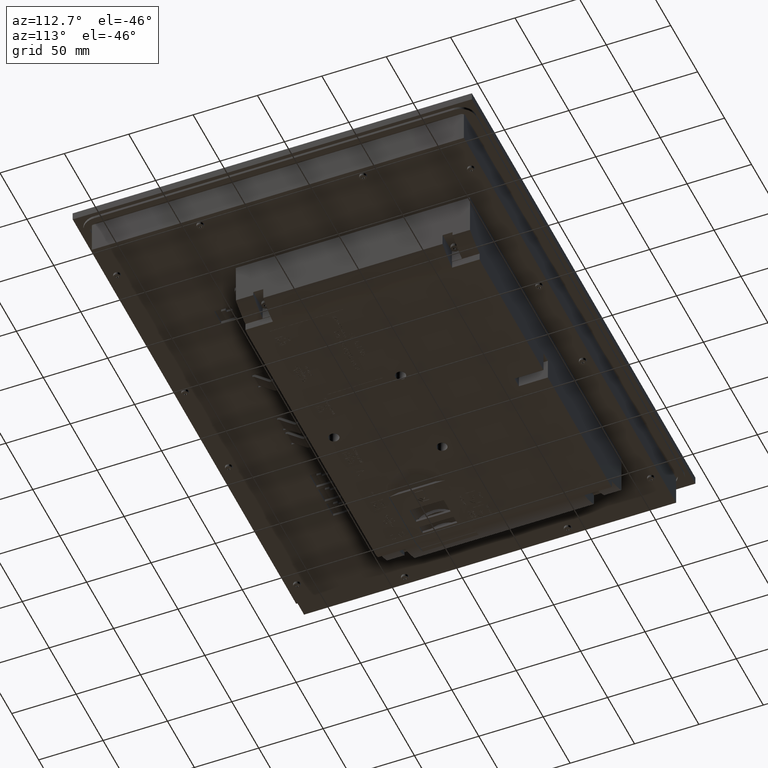
[diagram: clean part render]
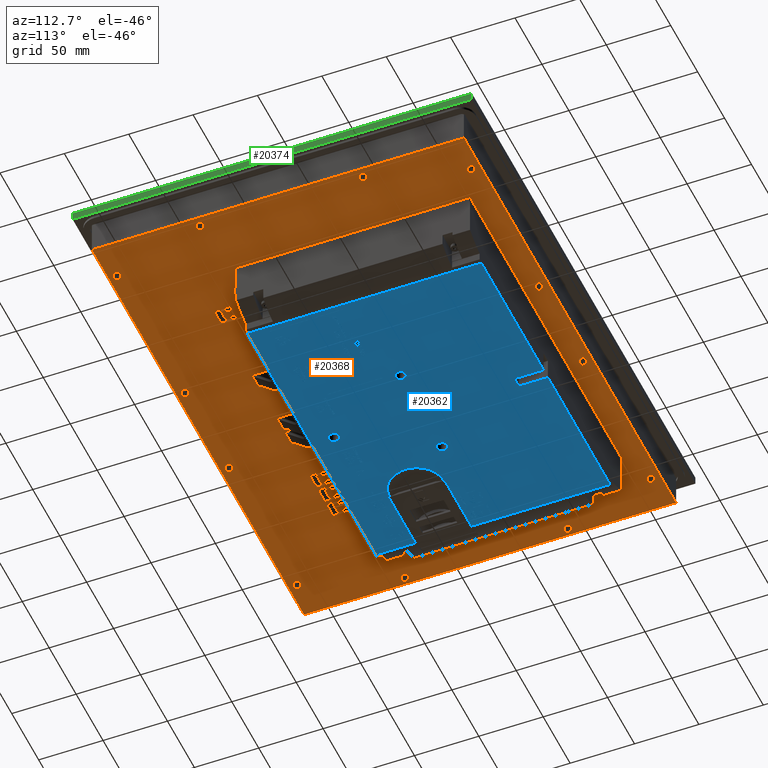
[diagram: same view with three faces highlighted in distinct colors, each labeled with its STEP entity id]
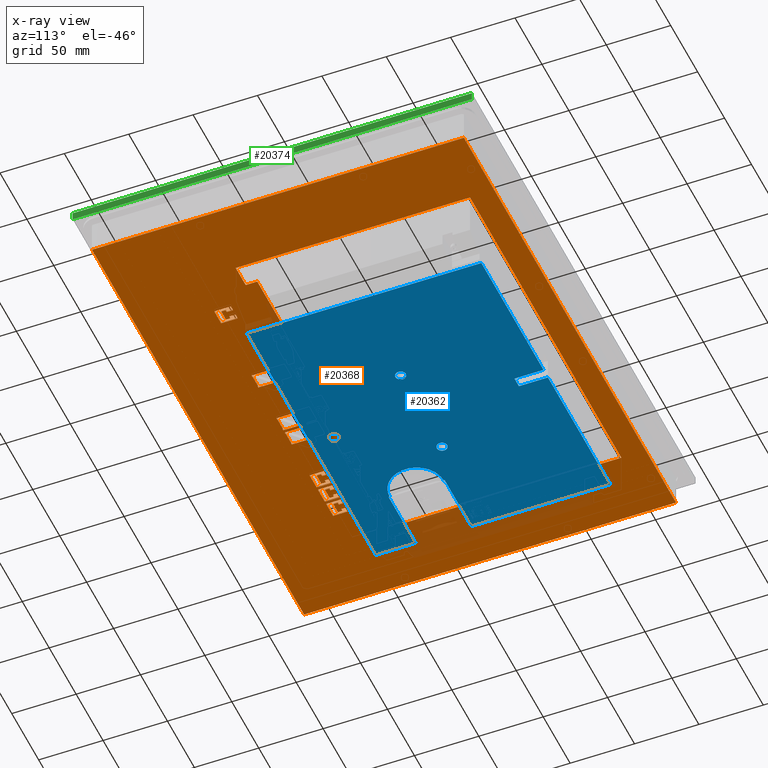
[diagram: x-ray of the same camera — body ghosted, the three highlighted faces saturated]
A machine part, auxiliary view with three faces highlighted in distinct colors.
The next image is the same camera in x-ray (body ghosted, the three faces saturated) — at least one of them is partly hidden behind the body in this view.
Their STEP definitions:

[orange] entity #20368 — the highlighted planar face has unit normal (0, 0, -1).
#4360=LINE('',#72456,#9855);
#4426=LINE('',#72645,#9921);
#4438=LINE('',#72672,#9933);
#4442=LINE('',#72680,#9937);
#4452=LINE('',#72705,#9947);
#4456=LINE('',#72713,#9951);
#4459=LINE('',#72721,#9954);
#4460=LINE('',#72724,#9955);
#4461=LINE('',#72726,#9956);
#4462=LINE('',#72728,#9957);
#4463=LINE('',#72730,#9958);
#4464=LINE('',#72732,#9959);
#4465=LINE('',#72734,#9960);
#4466=LINE('',#72736,#9961);
#4467=LINE('',#72738,#9962);
#4468=LINE('',#72740,#9963);
#4469=LINE('',#72742,#9964);
#4470=LINE('',#72744,#9965);
#4471=LINE('',#72745,#9966);
#4472=LINE('',#72748,#9967);
#4473=LINE('',#72750,#9968);
#4474=LINE('',#72752,#9969);
#4475=LINE('',#72754,#9970);
#4476=LINE('',#72756,#9971);
#4477=LINE('',#72758,#9972);
#4478=LINE('',#72760,#9973);
#4479=LINE('',#72761,#9974);
#4480=LINE('',#72764,#9975);
#4481=LINE('',#72766,#9976);
#4482=LINE('',#72768,#9977);
#4483=LINE('',#72770,#9978);
#4484=LINE('',#72772,#9979);
#4485=LINE('',#72774,#9980);
#4486=LINE('',#72776,#9981);
#4487=LINE('',#72778,#9982);
#4488=LINE('',#72780,#9983);
#4489=LINE('',#72782,#9984);
#4490=LINE('',#72784,#9985);
#4491=LINE('',#72785,#9986);
#4492=LINE('',#72788,#9987);
#4493=LINE('',#72790,#9988);
#4494=LINE('',#72792,#9989);
#4495=LINE('',#72794,#9990);
#4496=LINE('',#72796,#9991);
#4497=LINE('',#72798,#9992);
#4498=LINE('',#72800,#9993);
#4499=LINE('',#72802,#9994);
#4500=LINE('',#72804,#9995);
#4501=LINE('',#72806,#9996);
#4502=LINE('',#72808,#9997);
#4503=LINE('',#72809,#9998);
#4504=LINE('',#72812,#9999);
#4505=LINE('',#72814,#10000);
#4506=LINE('',#72816,#10001);
#4507=LINE('',#72817,#10002);
#4508=LINE('',#72820,#10003);
#4509=LINE('',#72822,#10004);
#4510=LINE('',#72824,#10005);
#4511=LINE('',#72826,#10006);
#4512=LINE('',#72828,#10007);
#4513=LINE('',#72830,#10008);
#4514=LINE('',#72832,#10009);
#4515=LINE('',#72834,#10010);
#4516=LINE('',#72836,#10011);
#4517=LINE('',#72838,#10012);
#4518=LINE('',#72840,#10013);
#4519=LINE('',#72841,#10014);
#4520=LINE('',#72844,#10015);
#4521=LINE('',#72846,#10016);
#4522=LINE('',#72848,#10017);
#4523=LINE('',#72850,#10018);
#4524=LINE('',#72852,#10019);
#4525=LINE('',#72854,#10020);
#4526=LINE('',#72856,#10021);
#4527=LINE('',#72857,#10022);
#4528=LINE('',#72860,#10023);
#4529=LINE('',#72862,#10024);
#4530=LINE('',#72864,#10025);
#4531=LINE('',#72866,#10026);
#4532=LINE('',#72868,#10027);
#4533=LINE('',#72870,#10028);
#4534=LINE('',#72872,#10029);
#4535=LINE('',#72873,#10030);
#4536=LINE('',#72874,#10031);
#9855=VECTOR('',#59454,1.);
#9921=VECTOR('',#59588,1.);
#9933=VECTOR('',#59606,1.);
#9937=VECTOR('',#59612,1.);
#9947=VECTOR('',#59632,1.);
#9951=VECTOR('',#59636,1.);
#9954=VECTOR('',#59645,1.);
#9955=VECTOR('',#59646,1.);
#9956=VECTOR('',#59647,1.);
#9957=VECTOR('',#59648,1.);
#9958=VECTOR('',#59649,1.);
#9959=VECTOR('',#59650,1.);
#9960=VECTOR('',#59651,1.);
#9961=VECTOR('',#59652,1.);
#9962=VECTOR('',#59653,1.);
#9963=VECTOR('',#59654,1.);
#9964=VECTOR('',#59655,1.);
#9965=VECTOR('',#59656,1.);
#9966=VECTOR('',#59657,1.);
#9967=VECTOR('',#59658,1.);
#9968=VECTOR('',#59659,1.);
#9969=VECTOR('',#59660,1.);
#9970=VECTOR('',#59661,1.);
#9971=VECTOR('',#59662,1.);
#9972=VECTOR('',#59663,1.);
#9973=VECTOR('',#59664,1.);
#9974=VECTOR('',#59665,1.);
#9975=VECTOR('',#59666,1.);
#9976=VECTOR('',#59667,1.);
#9977=VECTOR('',#59668,1.);
#9978=VECTOR('',#59669,1.);
#9979=VECTOR('',#59670,1.);
#9980=VECTOR('',#59671,1.);
#9981=VECTOR('',#59672,1.);
#9982=VECTOR('',#59673,1.);
#9983=VECTOR('',#59674,1.);
#9984=VECTOR('',#59675,1.);
#9985=VECTOR('',#59676,1.);
#9986=VECTOR('',#59677,1.);
#9987=VECTOR('',#59678,1.);
#9988=VECTOR('',#59679,1.);
#9989=VECTOR('',#59680,1.);
#9990=VECTOR('',#59681,1.);
#9991=VECTOR('',#59682,1.);
#9992=VECTOR('',#59683,1.);
#9993=VECTOR('',#59684,1.);
#9994=VECTOR('',#59685,1.);
#9995=VECTOR('',#59686,1.);
#9996=VECTOR('',#59687,1.);
#9997=VECTOR('',#59688,1.);
#9998=VECTOR('',#59689,1.);
#9999=VECTOR('',#59690,1.);
#10000=VECTOR('',#59691,1.);
#10001=VECTOR('',#59692,1.);
#10002=VECTOR('',#59693,1.);
#10003=VECTOR('',#59694,1.);
#10004=VECTOR('',#59695,1.);
#10005=VECTOR('',#59696,1.);
#10006=VECTOR('',#59697,1.);
#10007=VECTOR('',#59698,1.);
#10008=VECTOR('',#59699,1.);
#10009=VECTOR('',#59700,1.);
#10010=VECTOR('',#59701,1.);
#10011=VECTOR('',#59702,1.);
#10012=VECTOR('',#59703,1.);
#10013=VECTOR('',#59704,1.);
#10014=VECTOR('',#59705,1.);
#10015=VECTOR('',#59706,1.);
#10016=VECTOR('',#59707,1.);
#10017=VECTOR('',#59708,1.);
#10018=VECTOR('',#59709,1.);
#10019=VECTOR('',#59710,1.);
#10020=VECTOR('',#59711,1.);
#10021=VECTOR('',#59712,1.);
#10022=VECTOR('',#59713,1.);
#10023=VECTOR('',#59714,1.);
#10024=VECTOR('',#59715,1.);
#10025=VECTOR('',#59716,1.);
#10026=VECTOR('',#59717,1.);
#10027=VECTOR('',#59718,1.);
#10028=VECTOR('',#59719,1.);
#10029=VECTOR('',#59720,1.);
#10030=VECTOR('',#59721,1.);
#10031=VECTOR('',#59722,1.);
#17856=PLANE('',#54728);
#20368=ADVANCED_FACE('',(#23425,#23426,#23427,#23428,#23429,#23430,#23431,
#23432,#23433),#17856,.T.);
#23425=FACE_BOUND('',#24449,.T.);
#23426=FACE_BOUND('',#24450,.T.);
#23427=FACE_BOUND('',#24451,.T.);
#23428=FACE_BOUND('',#24452,.T.);
#23429=FACE_BOUND('',#24453,.T.);
#23430=FACE_BOUND('',#24454,.T.);
#23431=FACE_BOUND('',#24455,.T.);
#23432=FACE_BOUND('',#24456,.T.);
#23433=FACE_BOUND('',#24457,.T.);
#24449=EDGE_LOOP('',(#29309,#29310,#29311,#29312,#29313,#29314,#29315,#29316,
#29317,#29318,#29319,#29320));
#24450=EDGE_LOOP('',(#29321,#29322,#29323,#29324,#29325,#29326,#29327,#29328));
#24451=EDGE_LOOP('',(#29329,#29330,#29331,#29332,#29333,#29334,#29335,#29336,
#29337,#29338,#29339,#29340));
#24452=EDGE_LOOP('',(#29341,#29342,#29343,#29344,#29345,#29346,#29347,#29348,
#29349,#29350,#29351,#29352));
#24453=EDGE_LOOP('',(#29353,#29354,#29355,#29356));
#24454=EDGE_LOOP('',(#29357,#29358,#29359,#29360,#29361,#29362,#29363,#29364,
#29365,#29366,#29367,#29368));
#24455=EDGE_LOOP('',(#29369,#29370,#29371,#29372,#29373,#29374,#29375,#29376));
#24456=EDGE_LOOP('',(#29377,#29378,#29379,#29380,#29381,#29382,#29383,#29384));
#24457=EDGE_LOOP('',(#29385,#29386,#29387,#29388,#29389,#29390,#29391,#29392));
#29309=ORIENTED_EDGE('',*,*,#47240,.T.);
#29310=ORIENTED_EDGE('',*,*,#47241,.T.);
#29311=ORIENTED_EDGE('',*,*,#47242,.T.);
#29312=ORIENTED_EDGE('',*,*,#47243,.T.);
#29313=ORIENTED_EDGE('',*,*,#47244,.T.);
#29314=ORIENTED_EDGE('',*,*,#47245,.T.);
#29315=ORIENTED_EDGE('',*,*,#47246,.T.);
#29316=ORIENTED_EDGE('',*,*,#47247,.T.);
#29317=ORIENTED_EDGE('',*,*,#47248,.T.);
#29318=ORIENTED_EDGE('',*,*,#47249,.T.);
#29319=ORIENTED_EDGE('',*,*,#47250,.T.);
#29320=ORIENTED_EDGE('',*,*,#47251,.T.);
#29321=ORIENTED_EDGE('',*,*,#47252,.T.);
#29322=ORIENTED_EDGE('',*,*,#47253,.F.);
#29323=ORIENTED_EDGE('',*,*,#47254,.T.);
#29324=ORIENTED_EDGE('',*,*,#47255,.T.);
#29325=ORIENTED_EDGE('',*,*,#47256,.T.);
#29326=ORIENTED_EDGE('',*,*,#47257,.T.);
#29327=ORIENTED_EDGE('',*,*,#47258,.T.);
#29328=ORIENTED_EDGE('',*,*,#47259,.T.);
#29329=ORIENTED_EDGE('',*,*,#47260,.T.);
#29330=ORIENTED_EDGE('',*,*,#47261,.T.);
#29331=ORIENTED_EDGE('',*,*,#47262,.T.);
#29332=ORIENTED_EDGE('',*,*,#47263,.T.);
#29333=ORIENTED_EDGE('',*,*,#47264,.T.);
#29334=ORIENTED_EDGE('',*,*,#47265,.T.);
#29335=ORIENTED_EDGE('',*,*,#47266,.T.);
#29336=ORIENTED_EDGE('',*,*,#47267,.T.);
#29337=ORIENTED_EDGE('',*,*,#47268,.T.);
#29338=ORIENTED_EDGE('',*,*,#47269,.T.);
#29339=ORIENTED_EDGE('',*,*,#47270,.T.);
#29340=ORIENTED_EDGE('',*,*,#47271,.T.);
#29341=ORIENTED_EDGE('',*,*,#47272,.T.);
#29342=ORIENTED_EDGE('',*,*,#47273,.T.);
#29343=ORIENTED_EDGE('',*,*,#47274,.T.);
#29344=ORIENTED_EDGE('',*,*,#47275,.T.);
#29345=ORIENTED_EDGE('',*,*,#47276,.T.);
#29346=ORIENTED_EDGE('',*,*,#47277,.T.);
#29347=ORIENTED_EDGE('',*,*,#47278,.T.);
#29348=ORIENTED_EDGE('',*,*,#47279,.T.);
#29349=ORIENTED_EDGE('',*,*,#47280,.T.);
#29350=ORIENTED_EDGE('',*,*,#47281,.T.);
#29351=ORIENTED_EDGE('',*,*,#47282,.T.);
#29352=ORIENTED_EDGE('',*,*,#47283,.T.);
#29353=ORIENTED_EDGE('',*,*,#47284,.T.);
#29354=ORIENTED_EDGE('',*,*,#47285,.T.);
#29355=ORIENTED_EDGE('',*,*,#47286,.T.);
#29356=ORIENTED_EDGE('',*,*,#47287,.T.);
#29357=ORIENTED_EDGE('',*,*,#47288,.T.);
#29358=ORIENTED_EDGE('',*,*,#47289,.T.);
#29359=ORIENTED_EDGE('',*,*,#47290,.T.);
#29360=ORIENTED_EDGE('',*,*,#47291,.T.);
#29361=ORIENTED_EDGE('',*,*,#47292,.T.);
#29362=ORIENTED_EDGE('',*,*,#47293,.T.);
#29363=ORIENTED_EDGE('',*,*,#47294,.T.);
#29364=ORIENTED_EDGE('',*,*,#47295,.T.);
#29365=ORIENTED_EDGE('',*,*,#47296,.T.);
#29366=ORIENTED_EDGE('',*,*,#47297,.T.);
#29367=ORIENTED_EDGE('',*,*,#47298,.T.);
#29368=ORIENTED_EDGE('',*,*,#47299,.T.);
#29369=ORIENTED_EDGE('',*,*,#47300,.T.);
#29370=ORIENTED_EDGE('',*,*,#47301,.F.);
#29371=ORIENTED_EDGE('',*,*,#47302,.T.);
#29372=ORIENTED_EDGE('',*,*,#47303,.T.);
#29373=ORIENTED_EDGE('',*,*,#47304,.T.);
#29374=ORIENTED_EDGE('',*,*,#47305,.T.);
#29375=ORIENTED_EDGE('',*,*,#47306,.T.);
#29376=ORIENTED_EDGE('',*,*,#47307,.T.);
#29377=ORIENTED_EDGE('',*,*,#47308,.T.);
#29378=ORIENTED_EDGE('',*,*,#47309,.F.);
#29379=ORIENTED_EDGE('',*,*,#47310,.T.);
#29380=ORIENTED_EDGE('',*,*,#47311,.T.);
#29381=ORIENTED_EDGE('',*,*,#47312,.T.);
#29382=ORIENTED_EDGE('',*,*,#47313,.T.);
#29383=ORIENTED_EDGE('',*,*,#47314,.T.);
#29384=ORIENTED_EDGE('',*,*,#47315,.T.);
#29385=ORIENTED_EDGE('',*,*,#47231,.F.);
#29386=ORIENTED_EDGE('',*,*,#47218,.F.);
#29387=ORIENTED_EDGE('',*,*,#47200,.F.);
#29388=ORIENTED_EDGE('',*,*,#47214,.F.);
#29389=ORIENTED_EDGE('',*,*,#47235,.F.);
#29390=ORIENTED_EDGE('',*,*,#47316,.F.);
#29391=ORIENTED_EDGE('',*,*,#47105,.F.);
#29392=ORIENTED_EDGE('',*,*,#47317,.T.);
#42068=VERTEX_POINT('',#72455);
#42069=VERTEX_POINT('',#72457);
#42157=VERTEX_POINT('',#72644);
#42158=VERTEX_POINT('',#72646);
#42169=VERTEX_POINT('',#72671);
#42173=VERTEX_POINT('',#72681);
#42183=VERTEX_POINT('',#72706);
#42186=VERTEX_POINT('',#72712);
#42189=VERTEX_POINT('',#72722);
#42190=VERTEX_POINT('',#72723);
#42191=VERTEX_POINT('',#72725);
#42192=VERTEX_POINT('',#72727);
#42193=VERTEX_POINT('',#72729);
#42194=VERTEX_POINT('',#72731);
#42195=VERTEX_POINT('',#72733);
#42196=VERTEX_POINT('',#72735);
#42197=VERTEX_POINT('',#72737);
#42198=VERTEX_POINT('',#72739);
#42199=VERTEX_POINT('',#72741);
#42200=VERTEX_POINT('',#72743);
#42201=VERTEX_POINT('',#72746);
#42202=VERTEX_POINT('',#72747);
#42203=VERTEX_POINT('',#72749);
#42204=VERTEX_POINT('',#72751);
#42205=VERTEX_POINT('',#72753);
#42206=VERTEX_POINT('',#72755);
#42207=VERTEX_POINT('',#72757);
#42208=VERTEX_POINT('',#72759);
#42209=VERTEX_POINT('',#72762);
#42210=VERTEX_POINT('',#72763);
#42211=VERTEX_POINT('',#72765);
#42212=VERTEX_POINT('',#72767);
#42213=VERTEX_POINT('',#72769);
#42214=VERTEX_POINT('',#72771);
#42215=VERTEX_POINT('',#72773);
#42216=VERTEX_POINT('',#72775);
#42217=VERTEX_POINT('',#72777);
#42218=VERTEX_POINT('',#72779);
#42219=VERTEX_POINT('',#72781);
#42220=VERTEX_POINT('',#72783);
#42221=VERTEX_POINT('',#72786);
#42222=VERTEX_POINT('',#72787);
#42223=VERTEX_POINT('',#72789);
#42224=VERTEX_POINT('',#72791);
#42225=VERTEX_POINT('',#72793);
#42226=VERTEX_POINT('',#72795);
#42227=VERTEX_POINT('',#72797);
#42228=VERTEX_POINT('',#72799);
#42229=VERTEX_POINT('',#72801);
#42230=VERTEX_POINT('',#72803);
#42231=VERTEX_POINT('',#72805);
#42232=VERTEX_POINT('',#72807);
#42233=VERTEX_POINT('',#72810);
#42234=VERTEX_POINT('',#72811);
#42235=VERTEX_POINT('',#72813);
#42236=VERTEX_POINT('',#72815);
#42237=VERTEX_POINT('',#72818);
#42238=VERTEX_POINT('',#72819);
#42239=VERTEX_POINT('',#72821);
#42240=VERTEX_POINT('',#72823);
#42241=VERTEX_POINT('',#72825);
#42242=VERTEX_POINT('',#72827);
#42243=VERTEX_POINT('',#72829);
#42244=VERTEX_POINT('',#72831);
#42245=VERTEX_POINT('',#72833);
#42246=VERTEX_POINT('',#72835);
#42247=VERTEX_POINT('',#72837);
#42248=VERTEX_POINT('',#72839);
#42249=VERTEX_POINT('',#72842);
#42250=VERTEX_POINT('',#72843);
#42251=VERTEX_POINT('',#72845);
#42252=VERTEX_POINT('',#72847);
#42253=VERTEX_POINT('',#72849);
#42254=VERTEX_POINT('',#72851);
#42255=VERTEX_POINT('',#72853);
#42256=VERTEX_POINT('',#72855);
#42257=VERTEX_POINT('',#72858);
#42258=VERTEX_POINT('',#72859);
#42259=VERTEX_POINT('',#72861);
#42260=VERTEX_POINT('',#72863);
#42261=VERTEX_POINT('',#72865);
#42262=VERTEX_POINT('',#72867);
#42263=VERTEX_POINT('',#72869);
#42264=VERTEX_POINT('',#72871);
#47105=EDGE_CURVE('',#42068,#42069,#4360,.T.);
#47200=EDGE_CURVE('',#42157,#42158,#4426,.T.);
#47214=EDGE_CURVE('',#42169,#42157,#4438,.T.);
#47218=EDGE_CURVE('',#42158,#42173,#4442,.T.);
#47231=EDGE_CURVE('',#42173,#42183,#4452,.T.);
#47235=EDGE_CURVE('',#42186,#42169,#4456,.T.);
#47240=EDGE_CURVE('',#42189,#42190,#4459,.T.);
#47241=EDGE_CURVE('',#42190,#42191,#4460,.T.);
#47242=EDGE_CURVE('',#42191,#42192,#4461,.T.);
#47243=EDGE_CURVE('',#42192,#42193,#4462,.T.);
#47244=EDGE_CURVE('',#42193,#42194,#4463,.T.);
#47245=EDGE_CURVE('',#42194,#42195,#4464,.T.);
#47246=EDGE_CURVE('',#42195,#42196,#4465,.T.);
#47247=EDGE_CURVE('',#42196,#42197,#4466,.T.);
#47248=EDGE_CURVE('',#42197,#42198,#4467,.T.);
#47249=EDGE_CURVE('',#42198,#42199,#4468,.T.);
#47250=EDGE_CURVE('',#42199,#42200,#4469,.T.);
#47251=EDGE_CURVE('',#42200,#42189,#4470,.T.);
#47252=EDGE_CURVE('',#42201,#42202,#4471,.T.);
#47253=EDGE_CURVE('',#42203,#42202,#4472,.T.);
#47254=EDGE_CURVE('',#42203,#42204,#4473,.T.);
#47255=EDGE_CURVE('',#42204,#42205,#4474,.T.);
#47256=EDGE_CURVE('',#42205,#42206,#4475,.T.);
#47257=EDGE_CURVE('',#42206,#42207,#4476,.T.);
#47258=EDGE_CURVE('',#42207,#42208,#4477,.T.);
#47259=EDGE_CURVE('',#42208,#42201,#4478,.T.);
#47260=EDGE_CURVE('',#42209,#42210,#4479,.T.);
#47261=EDGE_CURVE('',#42210,#42211,#4480,.T.);
#47262=EDGE_CURVE('',#42211,#42212,#4481,.T.);
#47263=EDGE_CURVE('',#42212,#42213,#4482,.T.);
#47264=EDGE_CURVE('',#42213,#42214,#4483,.T.);
#47265=EDGE_CURVE('',#42214,#42215,#4484,.T.);
#47266=EDGE_CURVE('',#42215,#42216,#4485,.T.);
#47267=EDGE_CURVE('',#42216,#42217,#4486,.T.);
#47268=EDGE_CURVE('',#42217,#42218,#4487,.T.);
#47269=EDGE_CURVE('',#42218,#42219,#4488,.T.);
#47270=EDGE_CURVE('',#42219,#42220,#4489,.T.);
#47271=EDGE_CURVE('',#42220,#42209,#4490,.T.);
#47272=EDGE_CURVE('',#42221,#42222,#4491,.T.);
#47273=EDGE_CURVE('',#42222,#42223,#4492,.T.);
#47274=EDGE_CURVE('',#42223,#42224,#4493,.T.);
#47275=EDGE_CURVE('',#42224,#42225,#4494,.T.);
#47276=EDGE_CURVE('',#42225,#42226,#4495,.T.);
#47277=EDGE_CURVE('',#42226,#42227,#4496,.T.);
#47278=EDGE_CURVE('',#42227,#42228,#4497,.T.);
#47279=EDGE_CURVE('',#42228,#42229,#4498,.T.);
#47280=EDGE_CURVE('',#42229,#42230,#4499,.T.);
#47281=EDGE_CURVE('',#42230,#42231,#4500,.T.);
#47282=EDGE_CURVE('',#42231,#42232,#4501,.T.);
#47283=EDGE_CURVE('',#42232,#42221,#4502,.T.);
#47284=EDGE_CURVE('',#42233,#42234,#4503,.T.);
#47285=EDGE_CURVE('',#42234,#42235,#4504,.T.);
#47286=EDGE_CURVE('',#42235,#42236,#4505,.T.);
#47287=EDGE_CURVE('',#42236,#42233,#4506,.T.);
#47288=EDGE_CURVE('',#42237,#42238,#4507,.T.);
#47289=EDGE_CURVE('',#42238,#42239,#4508,.T.);
#47290=EDGE_CURVE('',#42239,#42240,#4509,.T.);
#47291=EDGE_CURVE('',#42240,#42241,#4510,.T.);
#47292=EDGE_CURVE('',#42241,#42242,#4511,.T.);
#47293=EDGE_CURVE('',#42242,#42243,#4512,.T.);
#47294=EDGE_CURVE('',#42243,#42244,#4513,.T.);
#47295=EDGE_CURVE('',#42244,#42245,#4514,.T.);
#47296=EDGE_CURVE('',#42245,#42246,#4515,.T.);
#47297=EDGE_CURVE('',#42246,#42247,#4516,.T.);
#47298=EDGE_CURVE('',#42247,#42248,#4517,.T.);
#47299=EDGE_CURVE('',#42248,#42237,#4518,.T.);
#47300=EDGE_CURVE('',#42249,#42250,#4519,.T.);
#47301=EDGE_CURVE('',#42251,#42250,#4520,.T.);
#47302=EDGE_CURVE('',#42251,#42252,#4521,.T.);
#47303=EDGE_CURVE('',#42252,#42253,#4522,.T.);
#47304=EDGE_CURVE('',#42253,#42254,#4523,.T.);
#47305=EDGE_CURVE('',#42254,#42255,#4524,.T.);
#47306=EDGE_CURVE('',#42255,#42256,#4525,.T.);
#47307=EDGE_CURVE('',#42256,#42249,#4526,.T.);
#47308=EDGE_CURVE('',#42257,#42258,#4527,.T.);
#47309=EDGE_CURVE('',#42259,#42258,#4528,.T.);
#47310=EDGE_CURVE('',#42259,#42260,#4529,.T.);
#47311=EDGE_CURVE('',#42260,#42261,#4530,.T.);
#47312=EDGE_CURVE('',#42261,#42262,#4531,.T.);
#47313=EDGE_CURVE('',#42262,#42263,#4532,.T.);
#47314=EDGE_CURVE('',#42263,#42264,#4533,.T.);
#47315=EDGE_CURVE('',#42264,#42257,#4534,.T.);
#47316=EDGE_CURVE('',#42069,#42186,#4535,.T.);
#47317=EDGE_CURVE('',#42068,#42183,#4536,.T.);
#54728=AXIS2_PLACEMENT_3D('',#72875,#59723,#59724);
#59454=DIRECTION('',(1.,0.,0.));
#59588=DIRECTION('',(-1.,0.,0.));
#59606=DIRECTION('',(0.,-1.,0.));
#59612=DIRECTION('',(0.,1.,0.));
#59632=DIRECTION('',(1.,0.,0.));
#59636=DIRECTION('',(1.,0.,0.));
#59645=DIRECTION('',(-1.,0.,0.));
#59646=DIRECTION('',(0.,-1.,0.));
#59647=DIRECTION('',(1.,0.,0.));
#59648=DIRECTION('',(0.,1.,0.));
#59649=DIRECTION('',(-1.,0.,0.));
#59650=DIRECTION('',(0.,1.,0.));
#59651=DIRECTION('',(1.,0.,0.));
#59652=DIRECTION('',(0.,-1.,0.));
#59653=DIRECTION('',(-1.,0.,0.));
#59654=DIRECTION('',(0.,-1.,0.));
#59655=DIRECTION('',(1.,0.,0.));
#59656=DIRECTION('',(0.,1.,0.));
#59657=DIRECTION('',(-1.,0.,0.));
#59658=DIRECTION('',(0.,1.,0.));
#59659=DIRECTION('',(-1.,0.,0.));
#59660=DIRECTION('',(0.,1.,0.));
#59661=DIRECTION('',(-1.,0.,0.));
#59662=DIRECTION('',(0.,-1.,0.));
#59663=DIRECTION('',(1.,0.,0.));
#59664=DIRECTION('',(0.,1.,0.));
#59665=DIRECTION('',(-1.,0.,0.));
#59666=DIRECTION('',(0.,-1.,0.));
#59667=DIRECTION('',(1.,0.,0.));
#59668=DIRECTION('',(0.,1.,0.));
#59669=DIRECTION('',(-1.,0.,0.));
#59670=DIRECTION('',(0.,1.,0.));
#59671=DIRECTION('',(1.,0.,0.));
#59672=DIRECTION('',(0.,-1.,0.));
#59673=DIRECTION('',(-1.,0.,0.));
#59674=DIRECTION('',(0.,-1.,0.));
#59675=DIRECTION('',(1.,0.,0.));
#59676=DIRECTION('',(0.,1.,0.));
#59677=DIRECTION('',(-1.,0.,0.));
#59678=DIRECTION('',(0.,-1.,0.));
#59679=DIRECTION('',(1.,0.,0.));
#59680=DIRECTION('',(0.,1.,0.));
#59681=DIRECTION('',(-1.,0.,0.));
#59682=DIRECTION('',(0.,1.,0.));
#59683=DIRECTION('',(1.,0.,0.));
#59684=DIRECTION('',(0.,-1.,0.));
#59685=DIRECTION('',(-1.,0.,0.));
#59686=DIRECTION('',(0.,-1.,0.));
#59687=DIRECTION('',(1.,0.,0.));
#59688=DIRECTION('',(0.,1.,0.));
#59689=DIRECTION('',(0.,1.,0.));
#59690=DIRECTION('',(1.,0.,0.));
#59691=DIRECTION('',(0.,-1.,0.));
#59692=DIRECTION('',(-1.,0.,0.));
#59693=DIRECTION('',(-1.,0.,0.));
#59694=DIRECTION('',(0.,-1.,0.));
#59695=DIRECTION('',(1.,0.,0.));
#59696=DIRECTION('',(0.,1.,0.));
#59697=DIRECTION('',(-1.,0.,0.));
#59698=DIRECTION('',(0.,1.,0.));
#59699=DIRECTION('',(1.,0.,0.));
#59700=DIRECTION('',(0.,-1.,0.));
#59701=DIRECTION('',(-1.,0.,0.));
#59702=DIRECTION('',(0.,-1.,0.));
#59703=DIRECTION('',(1.,0.,0.));
#59704=DIRECTION('',(0.,1.,0.));
#59705=DIRECTION('',(-1.,0.,0.));
#59706=DIRECTION('',(0.,1.,0.));
#59707=DIRECTION('',(-1.,0.,0.));
#59708=DIRECTION('',(0.,1.,0.));
#59709=DIRECTION('',(-1.,0.,0.));
#59710=DIRECTION('',(0.,-1.,0.));
#59711=DIRECTION('',(1.,0.,0.));
#59712=DIRECTION('',(0.,1.,0.));
#59713=DIRECTION('',(-1.,0.,0.));
#59714=DIRECTION('',(0.,1.,0.));
#59715=DIRECTION('',(-1.,0.,0.));
#59716=DIRECTION('',(0.,1.,0.));
#59717=DIRECTION('',(-1.,0.,0.));
#59718=DIRECTION('',(0.,-1.,0.));
#59719=DIRECTION('',(1.,0.,0.));
#59720=DIRECTION('',(0.,1.,0.));
#59721=DIRECTION('',(0.,1.,0.));
#59722=DIRECTION('',(0.,1.,0.));
#59723=DIRECTION('',(0.,0.,-1.));
#59724=DIRECTION('',(-1.,0.,0.));
#72455=CARTESIAN_POINT('',(-122.000000000027,47.40000192373,-28.));
#72456=CARTESIAN_POINT('',(-122.000000000027,47.40000192373,-28.));
#72457=CARTESIAN_POINT('',(122.000000000027,47.40000192373,-28.));
#72644=CARTESIAN_POINT('',(140.4873019237,-125.58730192373,-28.));
#72645=CARTESIAN_POINT('',(140.4873019237,-125.58730192373,-28.));
#72646=CARTESIAN_POINT('',(-140.4873019237,-125.58730192373,-28.));
#72671=CARTESIAN_POINT('',(140.4873019237,56.38730192373,-28.));
#72672=CARTESIAN_POINT('',(140.4873019237,56.38730192373,-28.));
#72680=CARTESIAN_POINT('',(-140.4873019237,-125.58730192373,-28.));
#72681=CARTESIAN_POINT('',(-140.4873019237,56.38730192373,-28.));
#72705=CARTESIAN_POINT('',(-140.4873019237,56.38730192373,-28.));
#72706=CARTESIAN_POINT('',(-122.000000000027,56.38730192373,-28.));
#72712=CARTESIAN_POINT('',(122.000000000027,56.38730192373,-28.));
#72713=CARTESIAN_POINT('',(-140.4873019237,56.38730192373,-28.));
#72721=CARTESIAN_POINT('',(-93.7,87.2674,-28.));
#72722=CARTESIAN_POINT('',(-93.7,87.2674,-28.));
#72723=CARTESIAN_POINT('',(-106.5,87.2674,-28.));
#72724=CARTESIAN_POINT('',(-106.5,87.2674,-28.));
#72725=CARTESIAN_POINT('',(-106.5,74.4674,-28.));
#72726=CARTESIAN_POINT('',(-106.5,74.4674,-28.));
#72727=CARTESIAN_POINT('',(-102.5,74.4674,-28.));
#72728=CARTESIAN_POINT('',(-102.5,74.4674,-28.));
#72729=CARTESIAN_POINT('',(-102.5,79.2674,-28.));
#72730=CARTESIAN_POINT('',(-102.5,79.2674,-28.));
#72731=CARTESIAN_POINT('',(-104.5,79.2674,-28.));
#72732=CARTESIAN_POINT('',(-104.5,79.2674,-28.));
#72733=CARTESIAN_POINT('',(-104.5,82.7674,-28.));
#72734=CARTESIAN_POINT('',(-104.5,82.7674,-28.));
#72735=CARTESIAN_POINT('',(-95.7,82.7674,-28.));
#72736=CARTESIAN_POINT('',(-95.7,82.7674,-28.));
#72737=CARTESIAN_POINT('',(-95.7,79.2674,-28.));
#72738=CARTESIAN_POINT('',(-95.7,79.2674,-28.));
#72739=CARTESIAN_POINT('',(-97.7,79.2674,-28.));
#72740=CARTESIAN_POINT('',(-97.7,79.2674,-28.));
#72741=CARTESIAN_POINT('',(-97.7,74.4674,-28.));
#72742=CARTESIAN_POINT('',(-97.7,74.4674,-28.));
#72743=CARTESIAN_POINT('',(-93.7,74.4674,-28.));
#72744=CARTESIAN_POINT('',(-93.7,74.4674,-28.));
#72745=CARTESIAN_POINT('',(21.795,87.2674,-28.));
#72746=CARTESIAN_POINT('',(21.795,87.2674,-28.));
#72747=CARTESIAN_POINT('',(20.295,87.2674,-28.));
#72748=CARTESIAN_POINT('',(20.295,86.99534046853,-28.));
#72749=CARTESIAN_POINT('',(20.295,86.99534046853,-28.));
#72750=CARTESIAN_POINT('',(20.295,86.99534046853,-28.));
#72751=CARTESIAN_POINT('',(10.495,86.99534046853,-28.));
#72752=CARTESIAN_POINT('',(10.495,86.99534046853,-28.));
#72753=CARTESIAN_POINT('',(10.495,87.2674,-28.));
#72754=CARTESIAN_POINT('',(21.795,87.2674,-28.));
#72755=CARTESIAN_POINT('',(8.995,87.2674,-28.));
#72756=CARTESIAN_POINT('',(8.995,87.2674,-28.));
#72757=CARTESIAN_POINT('',(8.995,61.7674,-28.));
#72758=CARTESIAN_POINT('',(8.995,61.7674,-28.));
#72759=CARTESIAN_POINT('',(21.795,61.7674,-28.));
#72760=CARTESIAN_POINT('',(21.795,61.7674,-28.));
#72761=CARTESIAN_POINT('',(83.4,87.2674,-28.));
#72762=CARTESIAN_POINT('',(83.4,87.2674,-28.));
#72763=CARTESIAN_POINT('',(70.5999999999999,87.2674,-28.));
#72764=CARTESIAN_POINT('',(70.6,87.2674,-28.));
#72765=CARTESIAN_POINT('',(70.6,74.4674,-28.));
#72766=CARTESIAN_POINT('',(70.6,74.4674,-28.));
#72767=CARTESIAN_POINT('',(74.6,74.4674,-28.));
#72768=CARTESIAN_POINT('',(74.6,74.4674,-28.));
#72769=CARTESIAN_POINT('',(74.6,79.2674,-28.));
#72770=CARTESIAN_POINT('',(74.6,79.2674,-28.));
#72771=CARTESIAN_POINT('',(72.6,79.2674,-28.));
#72772=CARTESIAN_POINT('',(72.6,79.2674,-28.));
#72773=CARTESIAN_POINT('',(72.6,82.7674,-28.));
#72774=CARTESIAN_POINT('',(72.6,82.7674,-28.));
#72775=CARTESIAN_POINT('',(81.4,82.7674,-28.));
#72776=CARTESIAN_POINT('',(81.4,82.7674,-28.));
#72777=CARTESIAN_POINT('',(81.4,79.2674,-28.));
#72778=CARTESIAN_POINT('',(81.4,79.2674,-28.));
#72779=CARTESIAN_POINT('',(79.4,79.2674,-28.));
#72780=CARTESIAN_POINT('',(79.4,79.2674,-28.));
#72781=CARTESIAN_POINT('',(79.4,74.4674,-28.));
#72782=CARTESIAN_POINT('',(79.4,74.4674,-28.));
#72783=CARTESIAN_POINT('',(83.4,74.4674,-28.));
#72784=CARTESIAN_POINT('',(83.4,74.4674,-28.));
#72785=CARTESIAN_POINT('',(114.2,87.2674,-28.));
#72786=CARTESIAN_POINT('',(114.2,87.2674,-28.));
#72787=CARTESIAN_POINT('',(101.4,87.2674,-28.));
#72788=CARTESIAN_POINT('',(101.4,87.2674,-28.));
#72789=CARTESIAN_POINT('',(101.4,74.4674,-28.));
#72790=CARTESIAN_POINT('',(101.4,74.4674,-28.));
#72791=CARTESIAN_POINT('',(105.4,74.4674,-28.));
#72792=CARTESIAN_POINT('',(105.4,74.4674,-28.));
#72793=CARTESIAN_POINT('',(105.4,79.2674,-28.));
#72794=CARTESIAN_POINT('',(105.4,79.2674,-28.));
#72795=CARTESIAN_POINT('',(103.4,79.2674,-28.));
#72796=CARTESIAN_POINT('',(103.4,79.2674,-28.));
#72797=CARTESIAN_POINT('',(103.4,82.7674,-28.));
#72798=CARTESIAN_POINT('',(103.4,82.7674,-28.));
#72799=CARTESIAN_POINT('',(112.2,82.7674,-28.));
#72800=CARTESIAN_POINT('',(112.2,82.7674,-28.));
#72801=CARTESIAN_POINT('',(112.2,79.2674,-28.));
#72802=CARTESIAN_POINT('',(112.2,79.2674,-28.));
#72803=CARTESIAN_POINT('',(110.2,79.2674,-28.));
#72804=CARTESIAN_POINT('',(110.2,79.2674,-28.));
#72805=CARTESIAN_POINT('',(110.2,74.4674,-28.));
#72806=CARTESIAN_POINT('',(110.2,74.4674,-28.));
#72807=CARTESIAN_POINT('',(114.2,74.4674,-28.));
#72808=CARTESIAN_POINT('',(114.2,74.4674,-28.));
#72809=CARTESIAN_POINT('',(-196.949999,-144.45,-28.));
#72810=CARTESIAN_POINT('',(-196.949999,-144.45,-28.));
#72811=CARTESIAN_POINT('',(-196.949999,144.45,-28.));
#72812=CARTESIAN_POINT('',(-196.949999,144.45,-28.));
#72813=CARTESIAN_POINT('',(196.95,144.45,-28.));
#72814=CARTESIAN_POINT('',(196.95,144.45,-28.));
#72815=CARTESIAN_POINT('',(196.95,-144.45,-28.));
#72816=CARTESIAN_POINT('',(196.95,-144.45,-28.));
#72817=CARTESIAN_POINT('',(98.8,87.2674,-28.));
#72818=CARTESIAN_POINT('',(98.8,87.2674,-28.));
#72819=CARTESIAN_POINT('',(86.,87.2674,-28.));
#72820=CARTESIAN_POINT('',(86.,87.2674,-28.));
#72821=CARTESIAN_POINT('',(86.,74.4674,-28.));
#72822=CARTESIAN_POINT('',(86.,74.4674,-28.));
#72823=CARTESIAN_POINT('',(90.,74.4674,-28.));
#72824=CARTESIAN_POINT('',(90.,74.4674,-28.));
#72825=CARTESIAN_POINT('',(90.,79.2674,-28.));
#72826=CARTESIAN_POINT('',(90.,79.2674,-28.));
#72827=CARTESIAN_POINT('',(88.,79.2674,-28.));
#72828=CARTESIAN_POINT('',(88.,79.2674,-28.));
#72829=CARTESIAN_POINT('',(88.,82.7674,-28.));
#72830=CARTESIAN_POINT('',(88.,82.7674,-28.));
#72831=CARTESIAN_POINT('',(96.8,82.7674,-28.));
#72832=CARTESIAN_POINT('',(96.8,82.7674,-28.));
#72833=CARTESIAN_POINT('',(96.8,79.2674,-28.));
#72834=CARTESIAN_POINT('',(96.8,79.2674,-28.));
#72835=CARTESIAN_POINT('',(94.8,79.2674,-28.));
#72836=CARTESIAN_POINT('',(94.8,79.2674,-28.));
#72837=CARTESIAN_POINT('',(94.8,74.4674,-28.));
#72838=CARTESIAN_POINT('',(94.8,74.4674,-28.));
#72839=CARTESIAN_POINT('',(98.8,74.4674,-28.));
#72840=CARTESIAN_POINT('',(98.8,74.4674,-28.));
#72841=CARTESIAN_POINT('',(37.2,87.2674,-28.));
#72842=CARTESIAN_POINT('',(37.2,87.2674,-28.));
#72843=CARTESIAN_POINT('',(35.7,87.2674,-28.));
#72844=CARTESIAN_POINT('',(35.7,86.99534046853,-28.));
#72845=CARTESIAN_POINT('',(35.7,86.99534046853,-28.));
#72846=CARTESIAN_POINT('',(35.7,86.99534046853,-28.));
#72847=CARTESIAN_POINT('',(25.9,86.99534046853,-28.));
#72848=CARTESIAN_POINT('',(25.9,86.99534046853,-28.));
#72849=CARTESIAN_POINT('',(25.9,87.2674,-28.));
#72850=CARTESIAN_POINT('',(37.2,87.2674,-28.));
#72851=CARTESIAN_POINT('',(24.4,87.2674,-28.));
#72852=CARTESIAN_POINT('',(24.4,87.2674,-28.));
#72853=CARTESIAN_POINT('',(24.4,61.7674,-28.));
#72854=CARTESIAN_POINT('',(24.4,61.7674,-28.));
#72855=CARTESIAN_POINT('',(37.2,61.7674,-28.));
#72856=CARTESIAN_POINT('',(37.2,61.7674,-28.));
#72857=CARTESIAN_POINT('',(-24.4,87.2674,-28.));
#72858=CARTESIAN_POINT('',(-24.4,87.2674,-28.));
#72859=CARTESIAN_POINT('',(-25.9,87.2674,-28.));
#72860=CARTESIAN_POINT('',(-25.9,86.99534046853,-28.));
#72861=CARTESIAN_POINT('',(-25.9,86.99534046853,-28.));
#72862=CARTESIAN_POINT('',(-25.9,86.99534046853,-28.));
#72863=CARTESIAN_POINT('',(-35.7,86.99534046853,-28.));
#72864=CARTESIAN_POINT('',(-35.7,86.99534046853,-28.));
#72865=CARTESIAN_POINT('',(-35.7,87.2674,-28.));
#72866=CARTESIAN_POINT('',(-24.4,87.2674,-28.));
#72867=CARTESIAN_POINT('',(-37.2,87.2674,-28.));
#72868=CARTESIAN_POINT('',(-37.2,87.2674,-28.));
#72869=CARTESIAN_POINT('',(-37.2,61.7674,-28.));
#72870=CARTESIAN_POINT('',(-37.2,61.7674,-28.));
#72871=CARTESIAN_POINT('',(-24.4,61.7674,-28.));
#72872=CARTESIAN_POINT('',(-24.4,61.7674,-28.));
#72873=CARTESIAN_POINT('',(122.000000000027,47.40000192373,-28.));
#72874=CARTESIAN_POINT('',(-122.000000000027,47.40000192373,-28.));
#72875=CARTESIAN_POINT('',(-196.949999,144.45,-28.));

[blue] entity #20362 — the highlighted planar face has unit normal (0, 0, -1).
#4394=LINE('',#72562,#9889);
#4398=LINE('',#72578,#9893);
#4410=LINE('',#72611,#9905);
#4411=LINE('',#72616,#9906);
#4412=LINE('',#72618,#9907);
#4413=LINE('',#72619,#9908);
#4414=LINE('',#72621,#9909);
#4415=LINE('',#72623,#9910);
#4416=LINE('',#72625,#9911);
#4417=LINE('',#72627,#9912);
#4418=LINE('',#72629,#9913);
#4419=LINE('',#72631,#9914);
#4420=LINE('',#72632,#9915);
#9889=VECTOR('',#59528,1.);
#9893=VECTOR('',#59540,1.);
#9905=VECTOR('',#59566,1.);
#9906=VECTOR('',#59569,1.);
#9907=VECTOR('',#59570,1.);
#9908=VECTOR('',#59571,1.);
#9909=VECTOR('',#59572,1.);
#9910=VECTOR('',#59573,1.);
#9911=VECTOR('',#59574,1.);
#9912=VECTOR('',#59575,1.);
#9913=VECTOR('',#59576,1.);
#9914=VECTOR('',#59577,1.);
#9915=VECTOR('',#59578,1.);
#17851=PLANE('',#54714);
#20362=ADVANCED_FACE('',(#23421,#23422,#23423,#23424),#17851,.T.);
#23421=FACE_BOUND('',#24440,.T.);
#23422=FACE_BOUND('',#24441,.T.);
#23423=FACE_BOUND('',#24442,.T.);
#23424=FACE_BOUND('',#24443,.T.);
#24440=EDGE_LOOP('',(#29232));
#24441=EDGE_LOOP('',(#29233));
#24442=EDGE_LOOP('',(#29234));
#24443=EDGE_LOOP('',(#29235,#29236,#29237,#29238,#29239,#29240,#29241,#29242,
#29243,#29244,#29245,#29246,#29247,#29248));
#29232=ORIENTED_EDGE('',*,*,#47179,.F.);
#29233=ORIENTED_EDGE('',*,*,#47180,.F.);
#29234=ORIENTED_EDGE('',*,*,#47181,.F.);
#29235=ORIENTED_EDGE('',*,*,#47182,.T.);
#29236=ORIENTED_EDGE('',*,*,#47183,.T.);
#29237=ORIENTED_EDGE('',*,*,#47184,.T.);
#29238=ORIENTED_EDGE('',*,*,#47185,.T.);
#29239=ORIENTED_EDGE('',*,*,#47165,.F.);
#29240=ORIENTED_EDGE('',*,*,#47186,.T.);
#29241=ORIENTED_EDGE('',*,*,#47187,.T.);
#29242=ORIENTED_EDGE('',*,*,#47188,.T.);
#29243=ORIENTED_EDGE('',*,*,#47189,.T.);
#29244=ORIENTED_EDGE('',*,*,#47190,.T.);
#29245=ORIENTED_EDGE('',*,*,#47191,.T.);
#29246=ORIENTED_EDGE('',*,*,#47192,.T.);
#29247=ORIENTED_EDGE('',*,*,#47157,.F.);
#29248=ORIENTED_EDGE('',*,*,#47193,.T.);
#42120=VERTEX_POINT('',#72561);
#42121=VERTEX_POINT('',#72563);
#42128=VERTEX_POINT('',#72577);
#42129=VERTEX_POINT('',#72579);
#42140=VERTEX_POINT('',#72606);
#42141=VERTEX_POINT('',#72608);
#42142=VERTEX_POINT('',#72610);
#42143=VERTEX_POINT('',#72612);
#42144=VERTEX_POINT('',#72613);
#42145=VERTEX_POINT('',#72615);
#42146=VERTEX_POINT('',#72617);
#42147=VERTEX_POINT('',#72620);
#42148=VERTEX_POINT('',#72622);
#42149=VERTEX_POINT('',#72624);
#42150=VERTEX_POINT('',#72626);
#42151=VERTEX_POINT('',#72628);
#42152=VERTEX_POINT('',#72630);
#47157=EDGE_CURVE('',#42120,#42121,#4394,.T.);
#47165=EDGE_CURVE('',#42128,#42129,#4398,.T.);
#47179=EDGE_CURVE('',#42140,#42140,#53576,.T.);
#47180=EDGE_CURVE('',#42141,#42141,#53577,.T.);
#47181=EDGE_CURVE('',#42142,#42142,#53578,.T.);
#47182=EDGE_CURVE('',#42143,#42144,#4410,.T.);
#47183=EDGE_CURVE('',#42144,#42145,#53579,.T.);
#47184=EDGE_CURVE('',#42145,#42146,#4411,.T.);
#47185=EDGE_CURVE('',#42146,#42129,#4412,.T.);
#47186=EDGE_CURVE('',#42128,#42147,#4413,.T.);
#47187=EDGE_CURVE('',#42147,#42148,#4414,.T.);
#47188=EDGE_CURVE('',#42148,#42149,#4415,.T.);
#47189=EDGE_CURVE('',#42149,#42150,#4416,.T.);
#47190=EDGE_CURVE('',#42150,#42151,#4417,.T.);
#47191=EDGE_CURVE('',#42151,#42152,#4418,.T.);
#47192=EDGE_CURVE('',#42152,#42121,#4419,.T.);
#47193=EDGE_CURVE('',#42120,#42143,#4420,.T.);
#53576=CIRCLE('',#54710,4.00857521602);
#53577=CIRCLE('',#54711,4.00857521602);
#53578=CIRCLE('',#54712,4.00857521602);
#53579=CIRCLE('',#54713,21.0193116103343);
#54710=AXIS2_PLACEMENT_3D('',#72605,#59560,#59561);
#54711=AXIS2_PLACEMENT_3D('',#72607,#59562,#59563);
#54712=AXIS2_PLACEMENT_3D('',#72609,#59564,#59565);
#54713=AXIS2_PLACEMENT_3D('',#72614,#59567,#59568);
#54714=AXIS2_PLACEMENT_3D('',#72633,#59579,#59580);
#59528=DIRECTION('',(0.,1.,0.));
#59540=DIRECTION('',(0.,1.,0.));
#59560=DIRECTION('',(0.,0.,-1.));
#59561=DIRECTION('',(0.,-1.,0.));
#59562=DIRECTION('',(0.,0.,-1.));
#59563=DIRECTION('',(0.,-1.,0.));
#59564=DIRECTION('',(0.,0.,-1.));
#59565=DIRECTION('',(1.83697019872103E-016,-1.,0.));
#59566=DIRECTION('',(4.43001562735658E-015,-1.,0.));
#59567=DIRECTION('',(0.,0.,1.));
#59568=DIRECTION('',(-1.,0.,0.));
#59569=DIRECTION('',(4.43001564628201E-015,-1.,0.));
#59570=DIRECTION('',(1.,-6.38446580468553E-011,0.));
#59571=DIRECTION('',(-1.,0.,0.));
#59572=DIRECTION('',(0.,1.,0.));
#59573=DIRECTION('',(-1.,0.,0.));
#59574=DIRECTION('',(0.,-1.,0.));
#59575=DIRECTION('',(-1.,0.,0.));
#59576=DIRECTION('',(0.,1.,0.));
#59577=DIRECTION('',(1.,0.,0.));
#59578=DIRECTION('',(-1.,7.50595661958117E-010,0.));
#59579=DIRECTION('',(0.,0.,-1.));
#59580=DIRECTION('',(-1.,0.,0.));
#72561=CARTESIAN_POINT('',(119.499982654763,25.6671099981608,-75.6));
#72562=CARTESIAN_POINT('',(119.499982654763,-143.61269807627,-75.6));
#72563=CARTESIAN_POINT('',(119.499982654763,56.38730192373,-75.6));
#72577=CARTESIAN_POINT('',(119.499982654763,-125.58730192373,-75.6));
#72578=CARTESIAN_POINT('',(119.499982654763,-143.61269807627,-75.6));
#72579=CARTESIAN_POINT('',(119.499982654763,-17.8671099983878,-75.6));
#72605=CARTESIAN_POINT('',(-38.425,-28.975,-75.6));
#72606=CARTESIAN_POINT('',(-38.425,-32.98357521602,-75.6));
#72607=CARTESIAN_POINT('',(38.425,-28.975,-75.6));
#72608=CARTESIAN_POINT('',(38.425,-32.98357521602,-75.6));
#72609=CARTESIAN_POINT('',(0.,38.9,-75.6));
#72610=CARTESIAN_POINT('',(7.36363321116045E-016,34.89142478398,-75.6));
#72611=CARTESIAN_POINT('',(69.92463858792,25.6671100353719,-75.6));
#72612=CARTESIAN_POINT('',(69.92463858792,25.6671100353719,-75.6));
#72613=CARTESIAN_POINT('',(69.92463858792,24.9191765116977,-75.6));
#72614=CARTESIAN_POINT('',(70.,3.90000000000001,-75.6));
#72615=CARTESIAN_POINT('',(69.9246385879202,-17.1191765116977,-75.6));
#72616=CARTESIAN_POINT('',(69.9246385879202,-8.46909275381967,-75.6));
#72617=CARTESIAN_POINT('',(69.9246385879202,-17.8671099952227,-75.6));
#72618=CARTESIAN_POINT('',(69.9246385879202,-17.8671099952227,-75.6));
#72619=CARTESIAN_POINT('',(140.4873019237,-125.58730192373,-75.6));
#72620=CARTESIAN_POINT('',(4.07399373868722,-125.58730192373,-75.6));
#72621=CARTESIAN_POINT('',(4.07399373868721,-125.58730192373,-75.6));
#72622=CARTESIAN_POINT('',(4.07399373868721,-103.06629794779,-75.6));
#72623=CARTESIAN_POINT('',(4.07399373868722,-103.06629794779,-75.6));
#72624=CARTESIAN_POINT('',(-4.073993738688,-103.06629794779,-75.6));
#72625=CARTESIAN_POINT('',(-4.073993738688,-103.06629794779,-75.6));
#72626=CARTESIAN_POINT('',(-4.073993738688,-125.58730192373,-75.6));
#72627=CARTESIAN_POINT('',(140.4873019237,-125.58730192373,-75.6));
#72628=CARTESIAN_POINT('',(-119.500005295459,-125.58730192373,-75.5999999998899));
#72629=CARTESIAN_POINT('',(-119.500005295459,-143.61269807627,-75.5999999998899));
#72630=CARTESIAN_POINT('',(-119.500005295459,56.38730192373,-75.6));
#72631=CARTESIAN_POINT('',(-140.4873019237,56.38730192373,-75.6));
#72632=CARTESIAN_POINT('',(140.487301923511,25.6671099824078,-75.6));
#72633=CARTESIAN_POINT('',(-140.4873019237,56.38730192373,-75.6));

[green] entity #20374 — the highlighted planar face has unit normal (1, 0, 0).
#4348=LINE('',#72431,#9843);
#4557=LINE('',#72926,#10052);
#4562=LINE('',#72944,#10057);
#4563=LINE('',#72945,#10058);
#9843=VECTOR('',#59440,1.);
#10052=VECTOR('',#59761,1.);
#10057=VECTOR('',#59776,1.);
#10058=VECTOR('',#59777,1.);
#15348=FACE_OUTER_BOUND('',#24465,.T.);
#17862=PLANE('',#54742);
#20374=ADVANCED_FACE('',(#15348),#17862,.T.);
#24465=EDGE_LOOP('',(#29429,#29430,#29431,#29432));
#29429=ORIENTED_EDGE('',*,*,#47351,.F.);
#29430=ORIENTED_EDGE('',*,*,#47342,.F.);
#29431=ORIENTED_EDGE('',*,*,#47352,.T.);
#29432=ORIENTED_EDGE('',*,*,#47093,.T.);
#42055=VERTEX_POINT('',#72429);
#42057=VERTEX_POINT('',#72432);
#42284=VERTEX_POINT('',#72921);
#42286=VERTEX_POINT('',#72925);
#47093=EDGE_CURVE('',#42057,#42055,#4348,.T.);
#47342=EDGE_CURVE('',#42286,#42284,#4557,.T.);
#47351=EDGE_CURVE('',#42284,#42055,#4562,.T.);
#47352=EDGE_CURVE('',#42286,#42057,#4563,.T.);
#54742=AXIS2_PLACEMENT_3D('',#72946,#59778,#59779);
#59440=DIRECTION('',(0.,1.,0.));
#59761=DIRECTION('',(0.,1.,0.));
#59776=DIRECTION('',(0.,0.,1.));
#59777=DIRECTION('',(0.,0.,1.));
#59778=DIRECTION('',(-1.,0.,0.));
#59779=DIRECTION('',(0.,0.,1.));
#72429=CARTESIAN_POINT('',(-207.5,155.,3.7));
#72431=CARTESIAN_POINT('',(-207.5,-155.,3.7));
#72432=CARTESIAN_POINT('',(-207.5,-155.,3.7));
#72921=CARTESIAN_POINT('',(-207.5,155.,-2.49999999999983));
#72925=CARTESIAN_POINT('',(-207.5,-155.,-2.49999999999983));
#72926=CARTESIAN_POINT('',(-207.5,-155.,-2.49999999999983));
#72944=CARTESIAN_POINT('',(-207.5,155.,-2.49999999999983));
#72945=CARTESIAN_POINT('',(-207.5,-155.,-2.49999999999983));
#72946=CARTESIAN_POINT('',(-207.5,-155.,-2.49999999999983));